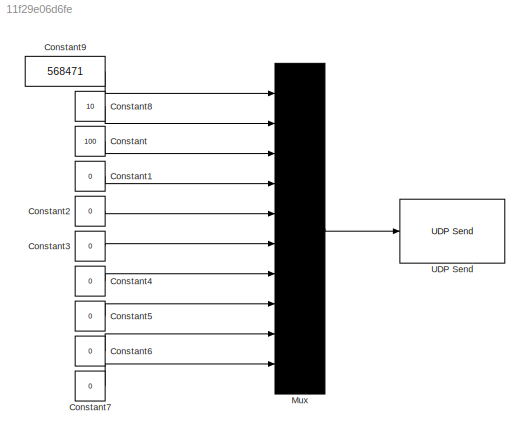
MODEL slx_11f29e06d6fe
KIND model
CONFIG AbsTol = auto
CONFIG EnableMultiTasking = off
CONFIG FixedStep = 0.01
CONFIG MaxStep = auto
CONFIG MinStep = auto
CONFIG RelTol = 1e-3
CONFIG SampleTimeConstraint = Unconstrained
CONFIG SolverName = FixedStepAuto
CONFIG StartTime = 0.0
CONFIG StopTime = inf
BLOCK [Constant] Constant
  Value = 100
BLOCK [Constant] Constant1
  Value = 0
BLOCK [Constant] Constant2
  Value = 0
BLOCK [Constant] Constant3
  Value = 0
BLOCK [Constant] Constant4
  Value = 0
BLOCK [Constant] Constant5
  Value = 0
BLOCK [Constant] Constant6
  Value = 0
BLOCK [Constant] Constant7
  Value = 0
BLOCK [Constant] Constant8
  Value = 10
BLOCK [Constant] Constant9
  Value = 568471
BLOCK [Mux] Mux
  DisplayOption = bar
  Inputs = 10
BLOCK [Reference] UDP Send  REF=nvidiaSharedBlocks/UDP Send
  LibrarySourceBlock = nvidiaNetworklib/UDP Send
  SourceBlock = nvidiaSharedBlocks/UDP Send
  SourceType = UDP Send
LINE Constant1:1 -> Mux:4
LINE Constant2:1 -> Mux:5
LINE Constant3:1 -> Mux:6
LINE Constant4:1 -> Mux:7
LINE Constant5:1 -> Mux:8
LINE Constant6:1 -> Mux:9
LINE Constant7:1 -> Mux:10
LINE Constant8:1 -> Mux:2
LINE Constant9:1 -> Mux:1
LINE Constant:1 -> Mux:3
LINE Mux:1 -> UDP Send:1
